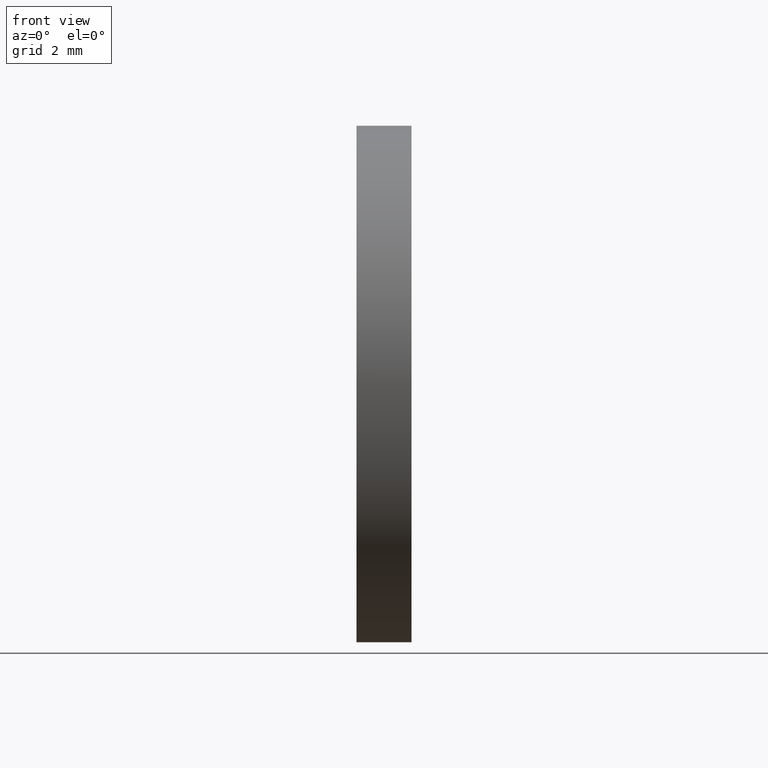
[diagram: clean part render]
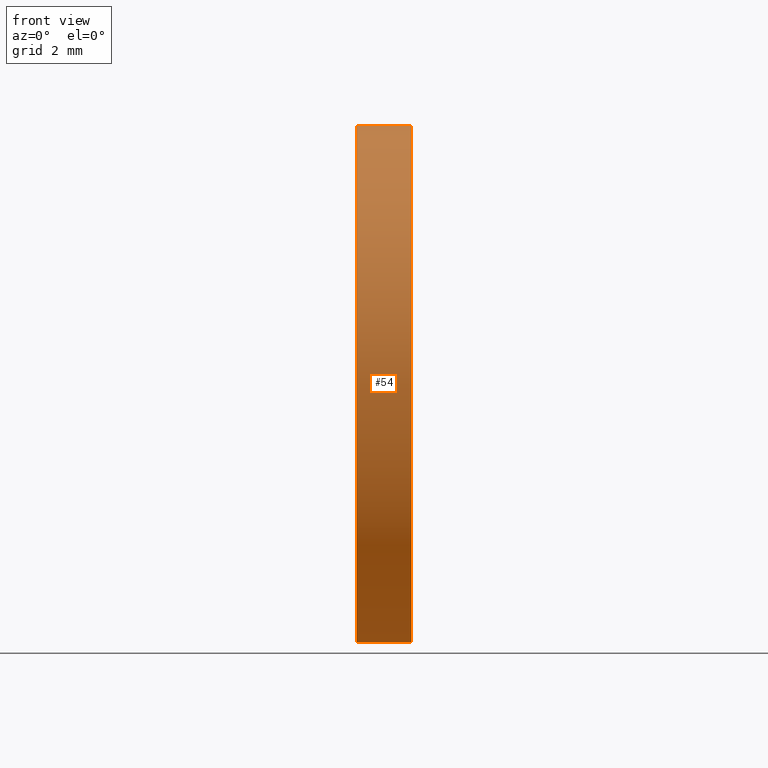
[diagram: same view with one face highlighted and labeled with its STEP entity id]
A machine part, front view. The second image highlights one B-rep face of the part: STEP entity #54.
In plain terms, the highlighted cylindrical surface (partial cylindrical patch) has radius 9.525 mm, axis along (-1, 0, 0).
Its self-contained STEP definition (entity closure, byte-faithful):
#25 = EDGE_LOOP ( 'NONE', ( #26, #27, #53, #56 ) ) ;
#26 = ORIENTED_EDGE ( 'NONE', *, *, #60, .F. ) ;
#27 = ORIENTED_EDGE ( 'NONE', *, *, #52, .T. ) ;
#35 = VERTEX_POINT ( 'NONE', #97 ) ;
#52 = EDGE_CURVE ( 'NONE', #59, #58, #136, .T. ) ;
#53 = ORIENTED_EDGE ( 'NONE', *, *, #70, .T. ) ;
#54 = ADVANCED_FACE ( 'NONE', ( #130 ), #131, .T. ) ;
#56 = ORIENTED_EDGE ( 'NONE', *, *, #65, .F. ) ;
#58 = VERTEX_POINT ( 'NONE', #138 ) ;
#59 = VERTEX_POINT ( 'NONE', #160 ) ;
#60 = EDGE_CURVE ( 'NONE', #59, #35, #159, .T. ) ;
#65 = EDGE_CURVE ( 'NONE', #35, #68, #146, .T. ) ;
#68 = VERTEX_POINT ( 'NONE', #171 ) ;
#70 = EDGE_CURVE ( 'NONE', #58, #68, #173, .T. ) ;
#97 = CARTESIAN_POINT ( 'NONE',  ( 0.0000000000000000000, 4.592425496802575500E-017, -0.3750000000000000600 ) ) ;
#130 = FACE_OUTER_BOUND ( 'NONE', #25, .T. ) ;
#131 = CYLINDRICAL_SURFACE ( 'NONE', #140, 0.3750000000000000600 ) ;
#132 = DIRECTION ( 'NONE',  ( -1.000000000000000000, 0.0000000000000000000, 0.0000000000000000000 ) ) ;
#133 = CARTESIAN_POINT ( 'NONE',  ( -1.721125226614714300, 0.0000000000000000000, 0.0000000000000000000 ) ) ;
#134 = CARTESIAN_POINT ( 'NONE',  ( 0.07999999999999996000, 0.0000000000000000000, 0.0000000000000000000 ) ) ;
#135 = AXIS2_PLACEMENT_3D ( 'NONE', #134, #151, #150 ) ;
#136 = CIRCLE ( 'NONE', #135, 0.3750000000000000600 ) ;
#138 = CARTESIAN_POINT ( 'NONE',  ( 0.07999999999999996000, 0.0000000000000000000, 0.3750000000000000600 ) ) ;
#139 = DIRECTION ( 'NONE',  ( 0.0000000000000000000, 0.0000000000000000000, 1.000000000000000000 ) ) ;
#140 = AXIS2_PLACEMENT_3D ( 'NONE', #133, #132, #139 ) ;
#142 = DIRECTION ( 'NONE',  ( 0.0000000000000000000, 0.0000000000000000000, 1.000000000000000000 ) ) ;
#143 = DIRECTION ( 'NONE',  ( -1.000000000000000000, 0.0000000000000000000, 0.0000000000000000000 ) ) ;
#144 = CARTESIAN_POINT ( 'NONE',  ( 0.0000000000000000000, 0.0000000000000000000, 0.0000000000000000000 ) ) ;
#145 = AXIS2_PLACEMENT_3D ( 'NONE', #144, #143, #142 ) ;
#146 = CIRCLE ( 'NONE', #145, 0.3750000000000000600 ) ;
#150 = DIRECTION ( 'NONE',  ( 0.0000000000000000000, 0.0000000000000000000, 1.000000000000000000 ) ) ;
#151 = DIRECTION ( 'NONE',  ( -1.000000000000000000, 0.0000000000000000000, 0.0000000000000000000 ) ) ;
#155 = DIRECTION ( 'NONE',  ( -1.000000000000000000, 0.0000000000000000000, 0.0000000000000000000 ) ) ;
#156 = VECTOR ( 'NONE', #155, 39.37007874015748100 ) ;
#157 = CARTESIAN_POINT ( 'NONE',  ( -1.721125226614714300, 4.592425496802575500E-017, -0.3750000000000000600 ) ) ;
#159 = LINE ( 'NONE', #157, #156 ) ;
#160 = CARTESIAN_POINT ( 'NONE',  ( 0.07999999999999996000, 4.592425496802575500E-017, -0.3750000000000000600 ) ) ;
#169 = DIRECTION ( 'NONE',  ( -1.000000000000000000, 0.0000000000000000000, 0.0000000000000000000 ) ) ;
#170 = VECTOR ( 'NONE', #169, 39.37007874015748100 ) ;
#171 = CARTESIAN_POINT ( 'NONE',  ( 0.0000000000000000000, 0.0000000000000000000, 0.3750000000000000600 ) ) ;
#172 = CARTESIAN_POINT ( 'NONE',  ( -1.721125226614714300, 0.0000000000000000000, 0.3750000000000000600 ) ) ;
#173 = LINE ( 'NONE', #172, #170 ) ;